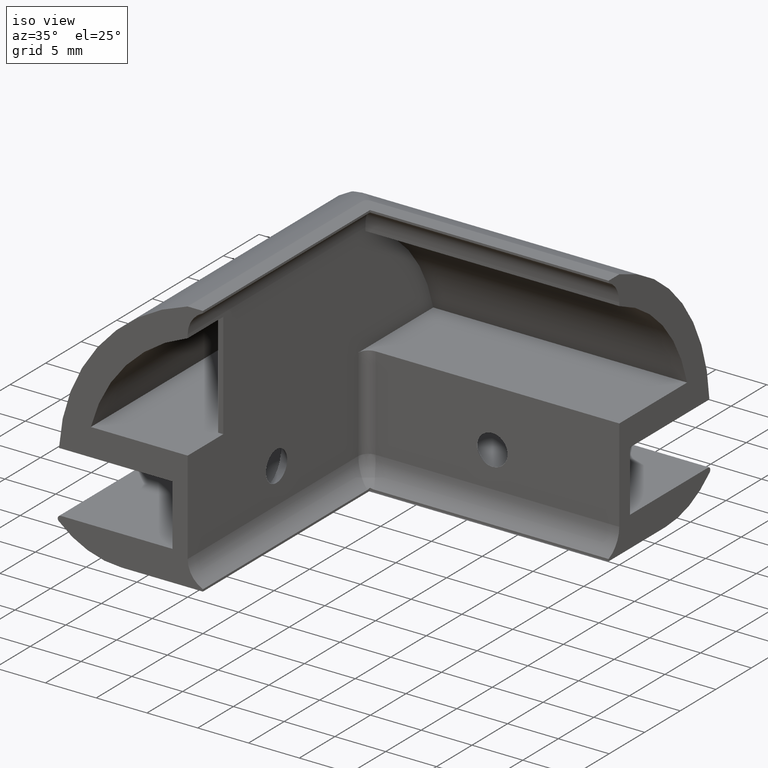
[diagram: clean part render]
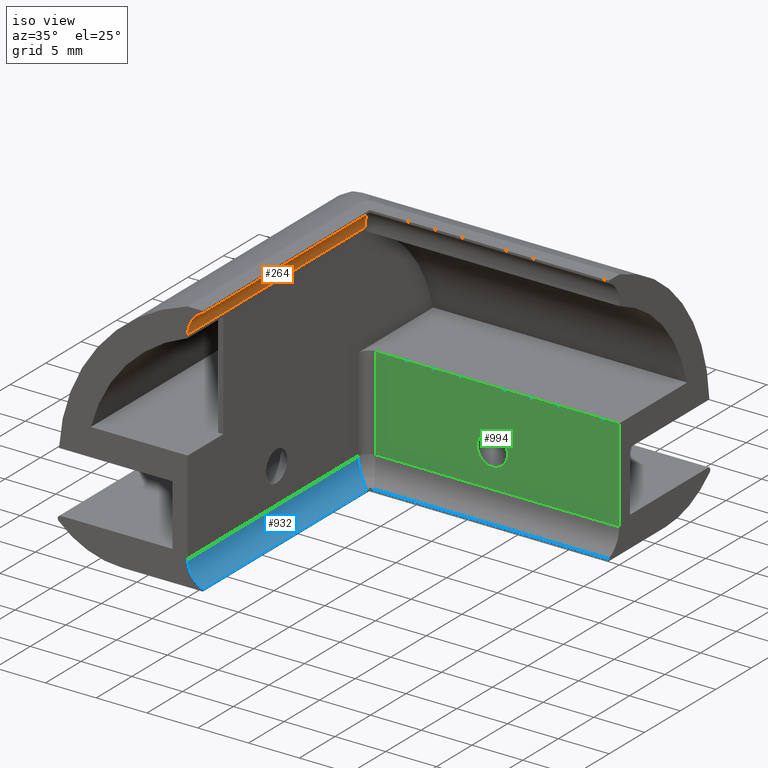
[diagram: same view with three faces highlighted in distinct colors, each labeled with its STEP entity id]
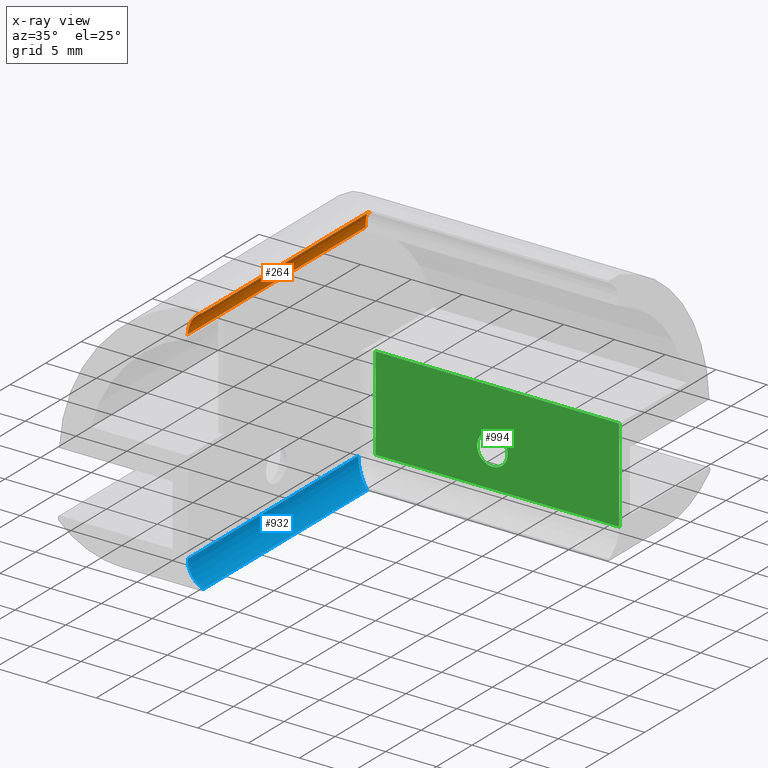
[diagram: x-ray of the same camera — body ghosted, the three highlighted faces saturated]
A machine part, iso view with three faces highlighted in distinct colors.
The next image is the same camera in x-ray (body ghosted, the three faces saturated) — at least one of them is partly hidden behind the body in this view.
Their STEP definitions:

[orange] entity #264 — the highlighted cylindrical surface (edge-blend (fillet) strip) has radius 2.5 mm, axis along (0, 1, 0).
#9=CARTESIAN_POINT('',(0.0,24.999999999999432,10.779091526507464));
#10=VERTEX_POINT('',#9);
#56=CARTESIAN_POINT('',(1.500000000000227,23.499999999999204,13.070379373986619));
#57=VERTEX_POINT('',#56);
#64=CARTESIAN_POINT('',(2.500000000000455,22.499999999999094,10.779091526507464));
#65=DIRECTION('',(-0.707106781186548,-0.707106781186548,0.0));
#66=DIRECTION('',(0.707106781186548,-0.707106781186548,4.357882E-033));
#67=AXIS2_PLACEMENT_3D('',#64,#65,#66);
#68=ELLIPSE('',#67,3.535533905933251,2.500000000000363);
#69=EDGE_CURVE('',#57,#10,#68,.T.);
#233=CARTESIAN_POINT('',(2.500000000000341,0.0,10.779091526507678));
#234=DIRECTION('',(0.0,1.0,0.0));
#235=DIRECTION('',(-1.0,0.0,5.551115E-017));
#236=AXIS2_PLACEMENT_3D('',#233,#234,#235);
#237=CYLINDRICAL_SURFACE('',#236,2.500000000000363);
#238=CARTESIAN_POINT('',(0.0,0.0,10.779091526507678));
#239=VERTEX_POINT('',#238);
#240=CARTESIAN_POINT('',(0.0,0.0,10.779091526507678));
#241=DIRECTION('',(0.0,1.0,0.0));
#242=VECTOR('',#241,24.999999999999396);
#243=LINE('',#240,#242);
#244=EDGE_CURVE('',#239,#10,#243,.T.);
#245=ORIENTED_EDGE('',*,*,#244,.T.);
#246=ORIENTED_EDGE('',*,*,#69,.F.);
#247=CARTESIAN_POINT('',(1.500000000000227,0.0,13.070379373986839));
#248=VERTEX_POINT('',#247);
#249=CARTESIAN_POINT('',(1.500000000000227,0.0,13.070379373986839));
#250=DIRECTION('',(0.0,1.0,0.0));
#251=VECTOR('',#250,23.499999999999144);
#252=LINE('',#249,#251);
#253=EDGE_CURVE('',#248,#57,#252,.T.);
#254=ORIENTED_EDGE('',*,*,#253,.F.);
#255=CARTESIAN_POINT('',(2.500000000000342,0.0,10.779091526507679));
#256=DIRECTION('',(0.0,1.0,0.0));
#257=DIRECTION('',(-0.399999999999632,0.0,0.916515138991329));
#258=AXIS2_PLACEMENT_3D('',#255,#256,#257);
#259=CIRCLE('',#258,2.500000000000363);
#260=EDGE_CURVE('',#239,#248,#259,.T.);
#261=ORIENTED_EDGE('',*,*,#260,.F.);
#262=EDGE_LOOP('',(#245,#246,#254,#261));
#263=FACE_OUTER_BOUND('',#262,.T.);
#264=ADVANCED_FACE('',(#263),#237,.F.);

[blue] entity #932 — the highlighted cylindrical surface (edge-blend (fillet) strip) has radius 2.5 mm, axis along (0, 1, 0).
#655=CARTESIAN_POINT('',(1.500000000000227,0.0,-11.491276147477771));
#656=VERTEX_POINT('',#655);
#672=CARTESIAN_POINT('',(1.500000000000910,23.099999999999113,-11.491276147478132));
#673=VERTEX_POINT('',#672);
#682=CARTESIAN_POINT('',(1.500000000000227,0.0,-11.491276147477771));
#683=DIRECTION('',(0.0,1.0,0.0));
#684=VECTOR('',#683,23.099999999999113);
#685=LINE('',#682,#684);
#686=EDGE_CURVE('',#656,#673,#685,.T.);
#778=CARTESIAN_POINT('',(0.0,23.999999999999432,-9.199988300000079));
#779=VERTEX_POINT('',#778);
#787=CARTESIAN_POINT('',(2.273737E-013,23.999999999999204,-9.199988299999863));
#788=CARTESIAN_POINT('',(2.273737E-013,23.999999999999204,-9.443010377450477));
#789=CARTESIAN_POINT('',(0.070469510559406,23.957718293663788,-9.909046985063039));
#790=CARTESIAN_POINT('',(0.357866545466777,23.785280072719388,-10.547287973996863));
#791=CARTESIAN_POINT('',(0.831767390083769,23.500939565949466,-11.116686874801484));
#792=CARTESIAN_POINT('',(1.252868354780730,23.248278987131243,-11.383419055017171));
#793=CARTESIAN_POINT('',(1.500000000001023,23.099999999999227,-11.491276147478132));
#794=B_SPLINE_CURVE_WITH_KNOTS('',3,(#787,#788,#789,#790,#791,#792,#793),.UNSPECIFIED.,.F.,.U.,(4,1,1,1,4),(0.0,0.669646483509300,1.287729259482106,2.060165486106655,3.068019181151319),.UNSPECIFIED.);
#795=EDGE_CURVE('',#779,#673,#794,.T.);
#908=CARTESIAN_POINT('',(2.500000000000227,0.0,-9.199988299999859));
#909=DIRECTION('',(0.0,1.0,0.0));
#910=DIRECTION('',(-0.400000000000001,0.0,-0.916515138991168));
#911=AXIS2_PLACEMENT_3D('',#908,#909,#910);
#912=CYLINDRICAL_SURFACE('',#911,2.499999999999993);
#913=ORIENTED_EDGE('',*,*,#686,.T.);
#914=ORIENTED_EDGE('',*,*,#795,.F.);
#915=CARTESIAN_POINT('',(0.0,0.0,-9.199988299999863));
#916=VERTEX_POINT('',#915);
#917=CARTESIAN_POINT('',(0.0,0.0,-9.199988299999863));
#918=DIRECTION('',(0.0,1.0,0.0));
#919=VECTOR('',#918,23.999999999999432);
#920=LINE('',#917,#919);
#921=EDGE_CURVE('',#916,#779,#920,.T.);
#922=ORIENTED_EDGE('',*,*,#921,.F.);
#923=CARTESIAN_POINT('',(2.500000000000227,0.0,-9.199988299999859));
#924=DIRECTION('',(0.0,1.0,0.0));
#925=DIRECTION('',(-1.0,0.0,-1.421085E-015));
#926=AXIS2_PLACEMENT_3D('',#923,#924,#925);
#927=CIRCLE('',#926,2.499999999999993);
#928=EDGE_CURVE('',#656,#916,#927,.T.);
#929=ORIENTED_EDGE('',*,*,#928,.F.);
#930=EDGE_LOOP('',(#913,#914,#922,#929));
#931=FACE_OUTER_BOUND('',#930,.T.);
#932=ADVANCED_FACE('',(#931),#912,.F.);

[green] entity #994 — the highlighted planar face has unit normal (0, 1, 0).
#776=CARTESIAN_POINT('',(1.0,24.999999999999432,-9.199988300000079));
#777=VERTEX_POINT('',#776);
#851=CARTESIAN_POINT('',(25.000000000000682,24.999999999999432,-2.167155E-013));
#852=VERTEX_POINT('',#851);
#868=CARTESIAN_POINT('',(1.0,24.999999999999432,0.0));
#869=VERTEX_POINT('',#868);
#877=CARTESIAN_POINT('',(1.0,24.999999999999435,-2.167155E-013));
#878=DIRECTION('',(1.0,0.0,0.0));
#879=VECTOR('',#878,24.000000000000682);
#880=LINE('',#877,#879);
#881=EDGE_CURVE('',#869,#852,#880,.T.);
#891=CARTESIAN_POINT('',(1.0,24.999999999999432,-9.199988300000079));
#892=DIRECTION('',(0.0,0.0,1.0));
#893=VECTOR('',#892,9.199988300000079);
#894=LINE('',#891,#893);
#895=EDGE_CURVE('',#777,#869,#894,.T.);
#938=CARTESIAN_POINT('',(25.000000000000682,24.999999999999432,-9.199988300000079));
#939=VERTEX_POINT('',#938);
#947=CARTESIAN_POINT('',(1.0,24.999999999999435,-9.199988300000079));
#948=DIRECTION('',(1.0,0.0,0.0));
#949=VECTOR('',#948,24.000000000000682);
#950=LINE('',#947,#949);
#951=EDGE_CURVE('',#777,#939,#950,.T.);
#958=CARTESIAN_POINT('',(-34.999999999999318,24.999999999999432,-9.199988300000079));
#959=DIRECTION('',(0.0,1.0,0.0));
#960=DIRECTION('',(0.0,0.0,1.0));
#961=AXIS2_PLACEMENT_3D('',#958,#959,#960);
#962=PLANE('',#961);
#963=ORIENTED_EDGE('',*,*,#951,.T.);
#964=CARTESIAN_POINT('',(25.000000000000682,24.999999999999432,-9.199988300000083));
#965=DIRECTION('',(0.0,0.0,1.0));
#966=VECTOR('',#965,9.199988299999863);
#967=LINE('',#964,#966);
#968=EDGE_CURVE('',#939,#852,#967,.T.);
#969=ORIENTED_EDGE('',*,*,#968,.T.);
#970=ORIENTED_EDGE('',*,*,#881,.F.);
#971=ORIENTED_EDGE('',*,*,#895,.F.);
#972=EDGE_LOOP('',(#963,#969,#970,#971));
#973=FACE_OUTER_BOUND('',#972,.T.);
#974=CARTESIAN_POINT('',(12.500000000000455,24.999999999999318,-7.199994299999844));
#975=VERTEX_POINT('',#974);
#976=CARTESIAN_POINT('',(12.500000000000455,24.999999999999318,-4.199994300000300));
#977=VERTEX_POINT('',#976);
#978=CARTESIAN_POINT('',(12.500000000000455,24.999999999999318,-5.699994300000071));
#979=DIRECTION('',(0.0,1.0,0.0));
#980=DIRECTION('',(0.0,0.0,-1.0));
#981=AXIS2_PLACEMENT_3D('',#978,#979,#980);
#982=CIRCLE('',#981,1.499999999999772);
#983=EDGE_CURVE('',#975,#977,#982,.T.);
#984=ORIENTED_EDGE('',*,*,#983,.T.);
#985=CARTESIAN_POINT('',(12.500000000000455,24.999999999999318,-5.699994300000071));
#986=DIRECTION('',(0.0,1.0,0.0));
#987=DIRECTION('',(0.0,0.0,-1.0));
#988=AXIS2_PLACEMENT_3D('',#985,#986,#987);
#989=CIRCLE('',#988,1.499999999999772);
#990=EDGE_CURVE('',#977,#975,#989,.T.);
#991=ORIENTED_EDGE('',*,*,#990,.T.);
#992=EDGE_LOOP('',(#984,#991));
#993=FACE_BOUND('',#992,.T.);
#994=ADVANCED_FACE('',(#973,#993),#962,.F.);